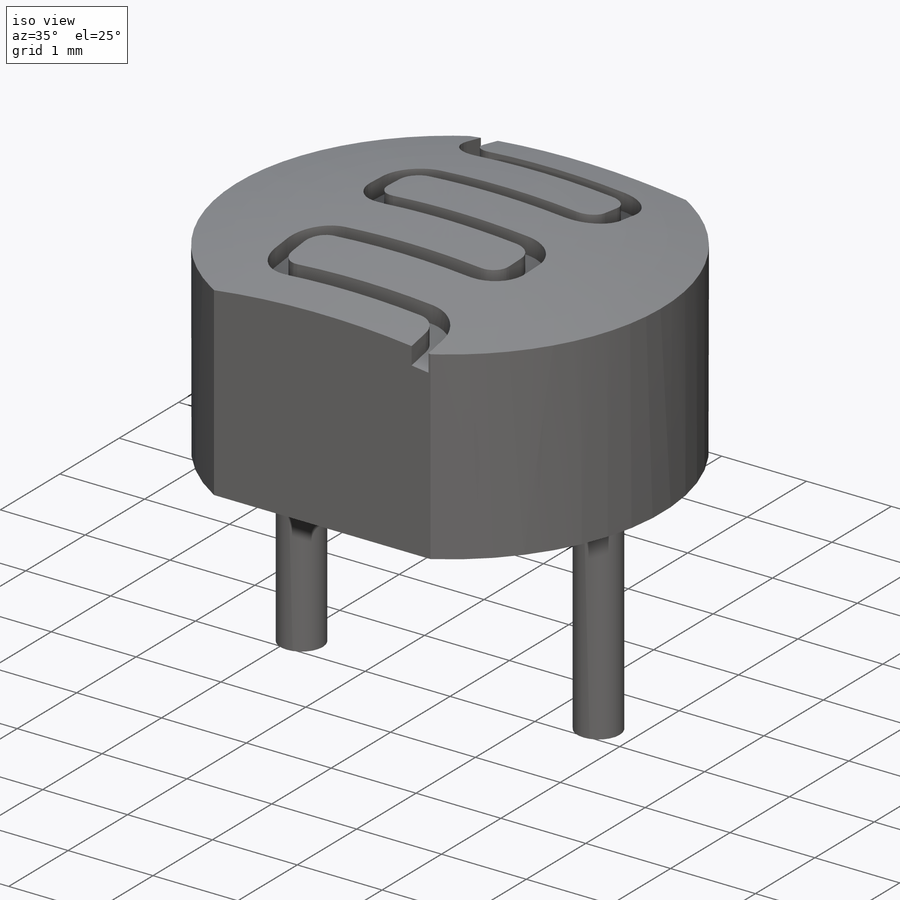
[diagram: iso view]
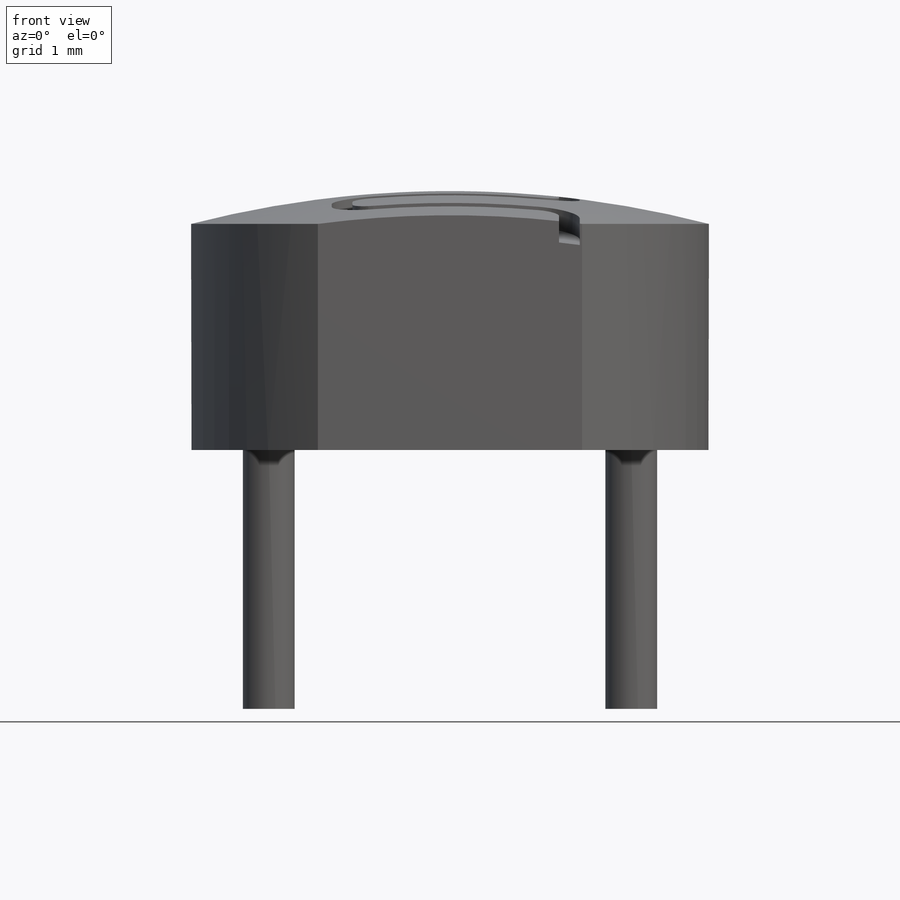
[diagram: front view]
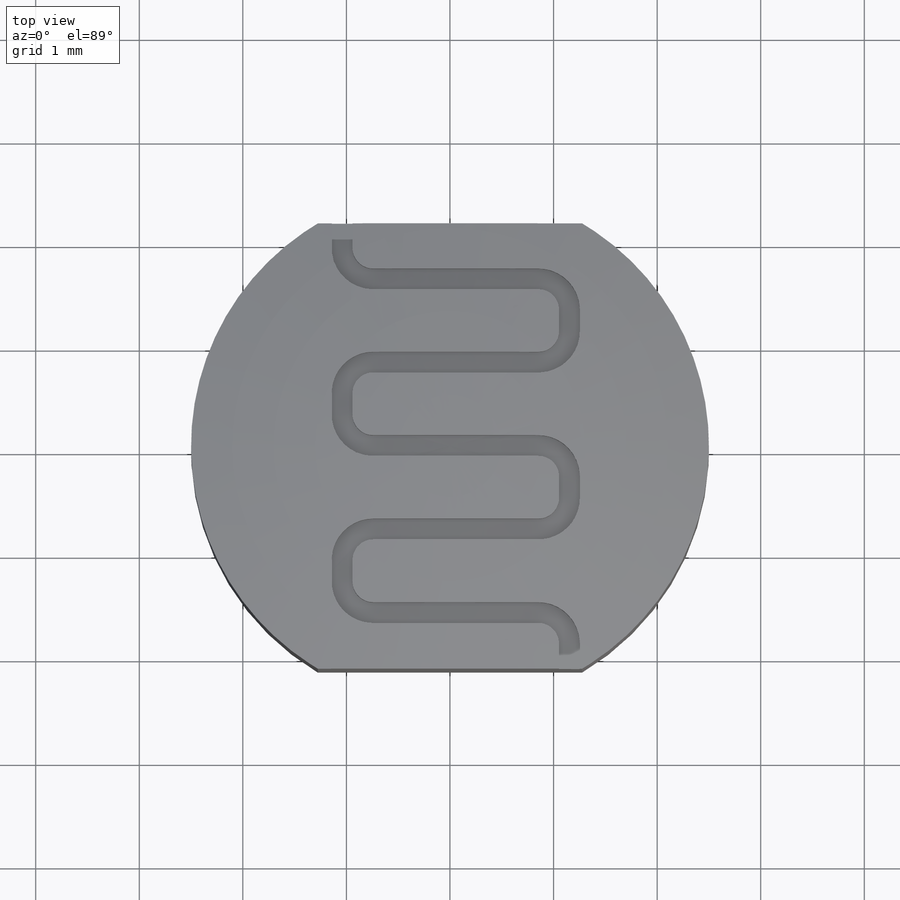
[diagram: top view]
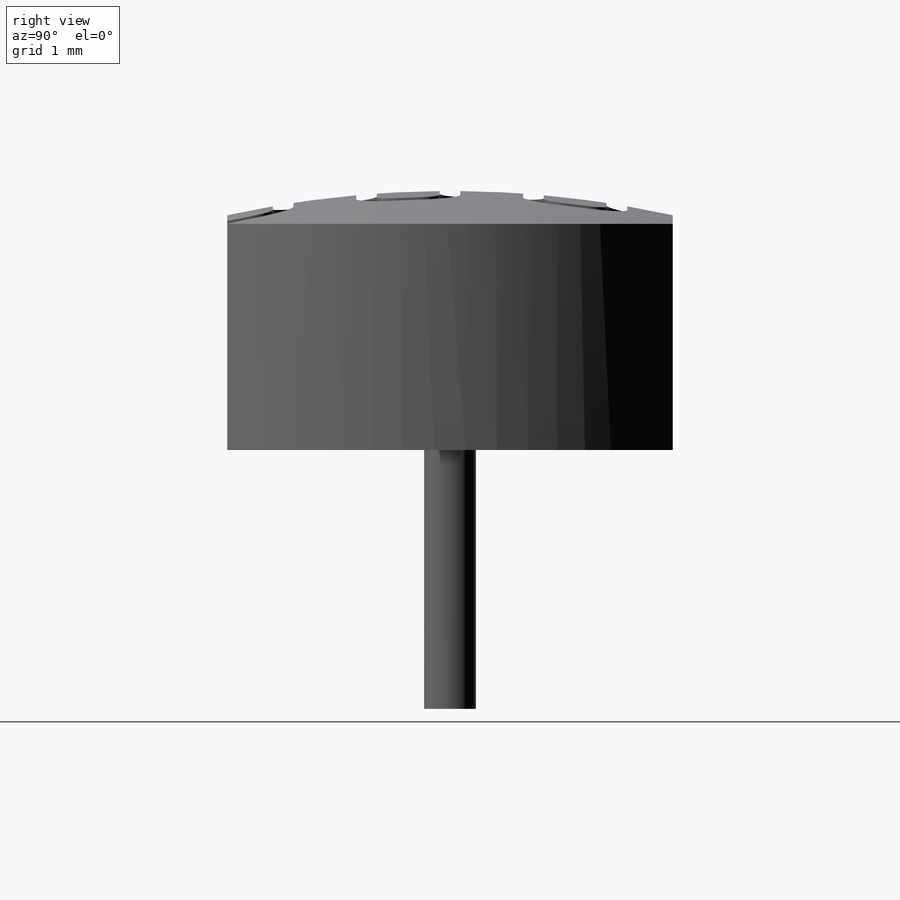
[diagram: right view]
SOLIDWORKS PART (.sldprt)
format: sldprt  version: not decoded by parser v0  size: 308,224 bytes
history: native  units: mm
features: sketch x4, plane x3, material x1, revolve x1, cut_extrude x1, extrude x1 (+8 scaffold rows collapsed)
feature tree (19):
  scaffold x8  (default folders/planes/origin — collapsed)
  material  "Matériau <non spécifié>"
  plane  "Plan de face"
  plane  "Plan de dessus"
  plane  "Plan de droite"
  sketch  "Esquisse1"  dims[c1.D1=~100.612892mm c1.D3=10.0mm c2.D1=5.0mm c2.D2=2.5mm]
  revolve  "Révolution1"  Angle=360deg
  sketch  "Esquisse2"  dims[c1.D1=~4.395972mm c1.D2=~8.464935mm c2.D1=4.3mm]
  cut_extrude  "Enlèv. mat.-Extru.2"  Depth=10mm
  sketch  "Esquisse3"  dims[D2=0.5mm D1=3.5mm]
  extrude  "Boss.-Extru.1"  Depth=2.5mm
  sketch  "Esquisse4"  dims[c1.D1=0.3mm c2.D1=0.2mm c2.D19=3.0mm c2.D5=0.2mm c2.D6=10.0mm c2.D7=5.0mm]
decode coverage: 7 of 7 modeling features carry decoded parameters
note: ~ marks probable driven/reference dimensions
note: suppression state not decoded; provenance and decode notes live in map.json
